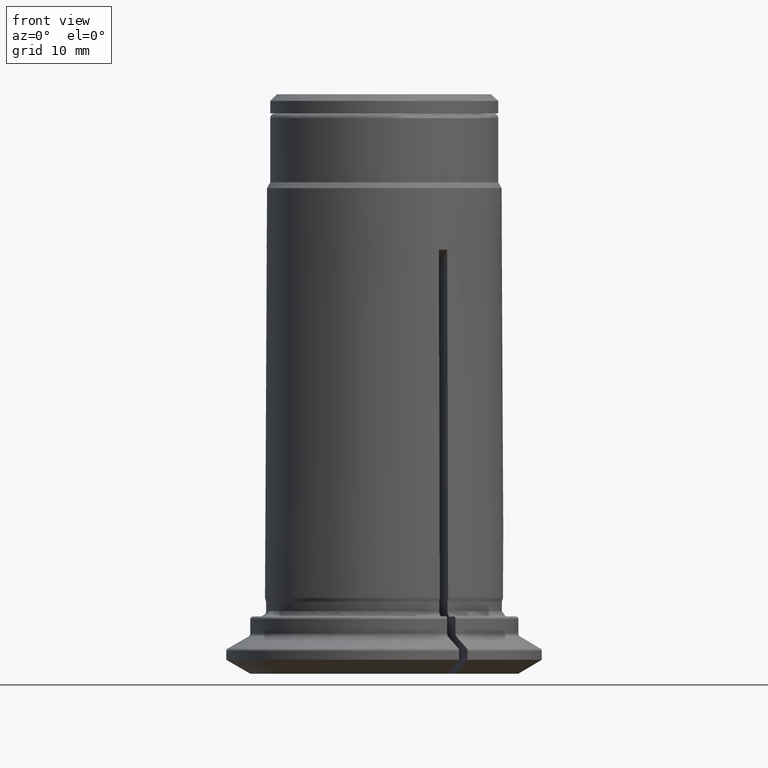
[diagram: clean part render]
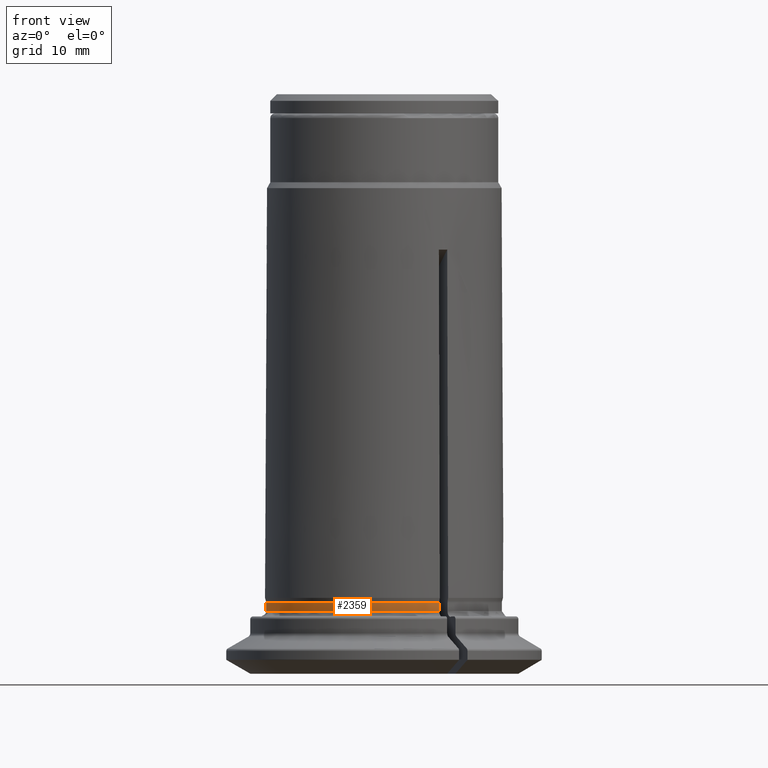
[diagram: same view with one face highlighted and labeled with its STEP entity id]
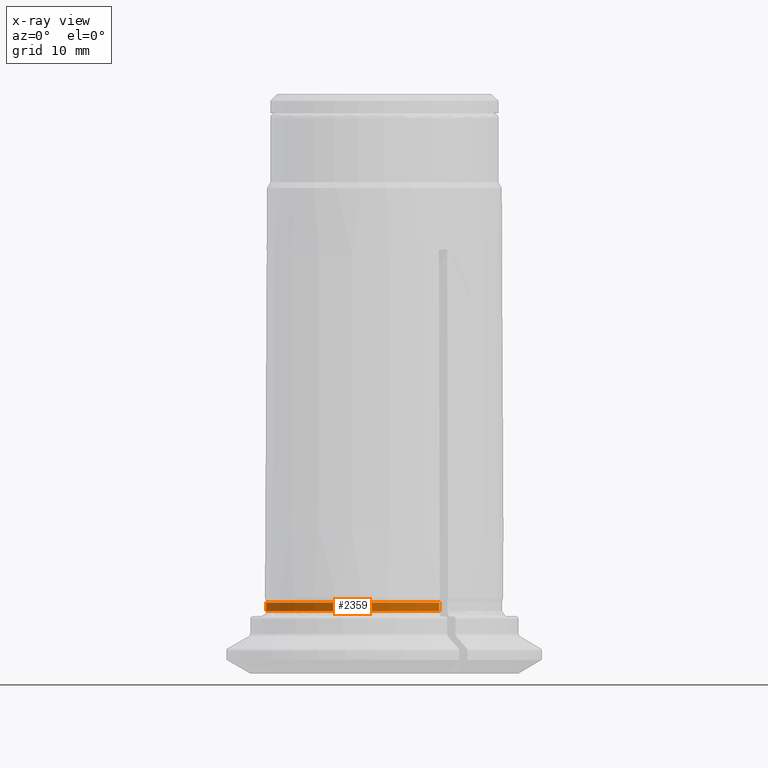
[diagram: x-ray of the same camera — body ghosted, the highlighted face saturated]
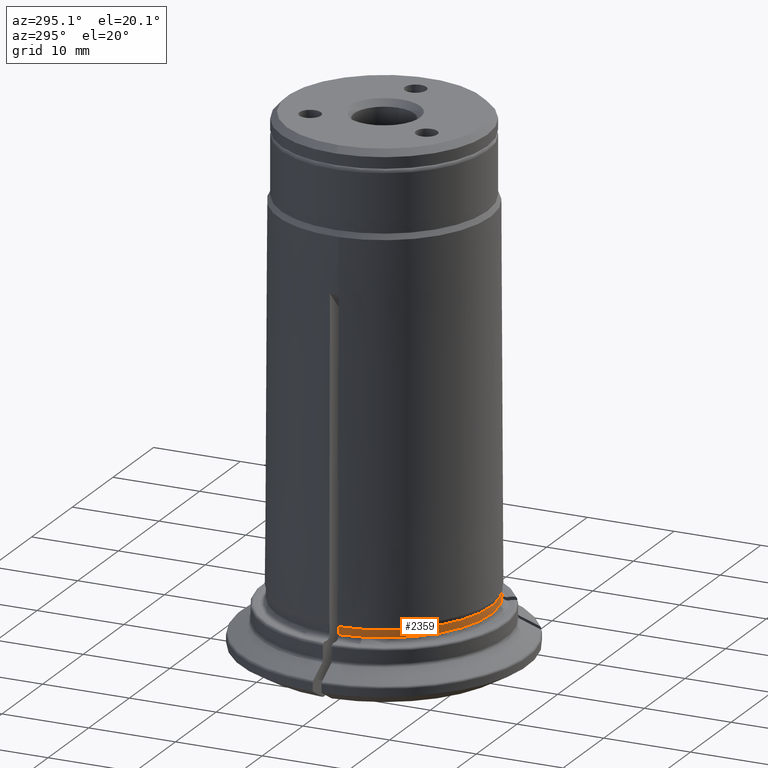
[diagram: same view with one face highlighted and labeled with its STEP entity id]
A machine part, front view. The second image highlights one B-rep face of the part: STEP entity #2359.
The next image is the same camera in x-ray: the body ghosted, the highlighted face saturated — about 0% of this face is hidden behind the body in this view.
A second angle (auxiliary view) of the same face is appended — the face is thin or edge-on in the first view.
In plain terms, the highlighted cylindrical surface (partial cylindrical patch) has radius 12.35 mm, axis along (0, 0, -1).
Its self-contained STEP definition (entity closure, byte-faithful):
#78=LINE('',#3633,#153);
#79=LINE('',#3637,#154);
#153=VECTOR('',#2986,1000.);
#154=VECTOR('',#2989,1000.);
#229=CYLINDRICAL_SURFACE('',#2555,12.35);
#340=CIRCLE('',#2553,12.35);
#342=CIRCLE('',#2556,12.35);
#650=ORIENTED_EDGE('',*,*,#1037,.F.);
#651=ORIENTED_EDGE('',*,*,#1038,.T.);
#652=ORIENTED_EDGE('',*,*,#1039,.T.);
#653=ORIENTED_EDGE('',*,*,#1034,.F.);
#1034=EDGE_CURVE('',#1236,#1238,#340,.T.);
#1037=EDGE_CURVE('',#1240,#1236,#78,.T.);
#1038=EDGE_CURVE('',#1240,#1241,#342,.T.);
#1039=EDGE_CURVE('',#1241,#1238,#79,.T.);
#1236=VERTEX_POINT('',#3622);
#1238=VERTEX_POINT('',#3625);
#1240=VERTEX_POINT('',#3634);
#1241=VERTEX_POINT('',#3636);
#1420=EDGE_LOOP('',(#650,#651,#652,#653));
#1558=FACE_BOUND('',#1420,.T.);
#2359=ADVANCED_FACE('',(#1558),#229,.T.);
#2553=AXIS2_PLACEMENT_3D('',#3624,#2980,#2981);
#2555=AXIS2_PLACEMENT_3D('',#3632,#2984,#2985);
#2556=AXIS2_PLACEMENT_3D('',#3635,#2987,#2988);
#2980=DIRECTION('',(0.,0.,1.));
#2981=DIRECTION('',(1.,0.,0.));
#2984=DIRECTION('',(0.,0.,-1.));
#2985=DIRECTION('',(1.,0.,0.));
#2986=DIRECTION('',(0.,0.,1.));
#2987=DIRECTION('',(0.,0.,1.));
#2988=DIRECTION('',(1.,0.,0.));
#2989=DIRECTION('',(0.,0.,1.));
#3622=CARTESIAN_POINT('',(-12.3398743915811,-0.499999999999984,7.43129706974458));
#3624=CARTESIAN_POINT('',(0.,0.,7.43129706974458));
#3625=CARTESIAN_POINT('',(5.73692449389835,-10.9366447026183,7.43129706974458));
#3632=CARTESIAN_POINT('',(0.,0.,-1.7347234759768E-15));
#3633=CARTESIAN_POINT('',(-12.3398743915811,-0.499999999999984,-1.7347234759768E-15));
#3634=CARTESIAN_POINT('',(-12.3398743915811,-0.499999999999984,6.55));
#3635=CARTESIAN_POINT('',(0.,0.,6.55));
#3636=CARTESIAN_POINT('',(5.73692449389835,-10.9366447026183,6.55));
#3637=CARTESIAN_POINT('',(5.73692449389835,-10.9366447026183,-1.7347234759768E-15));